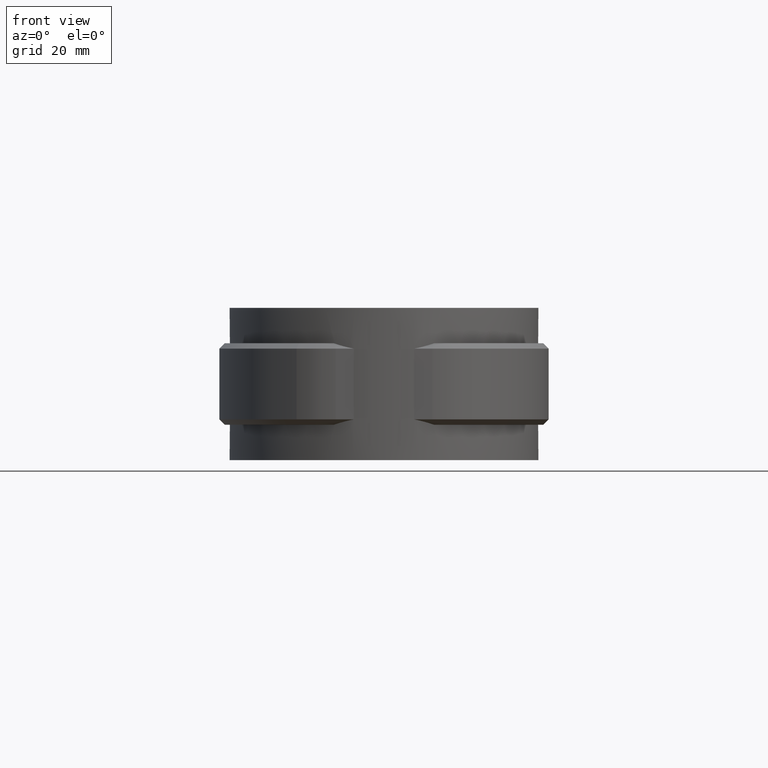
[diagram: clean part render]
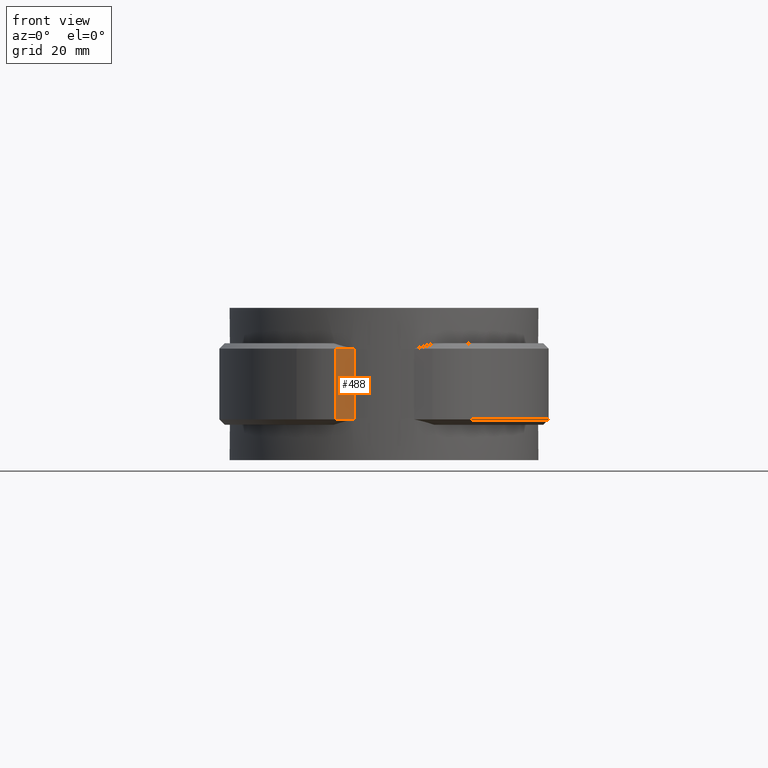
[diagram: same view with one face highlighted and labeled with its STEP entity id]
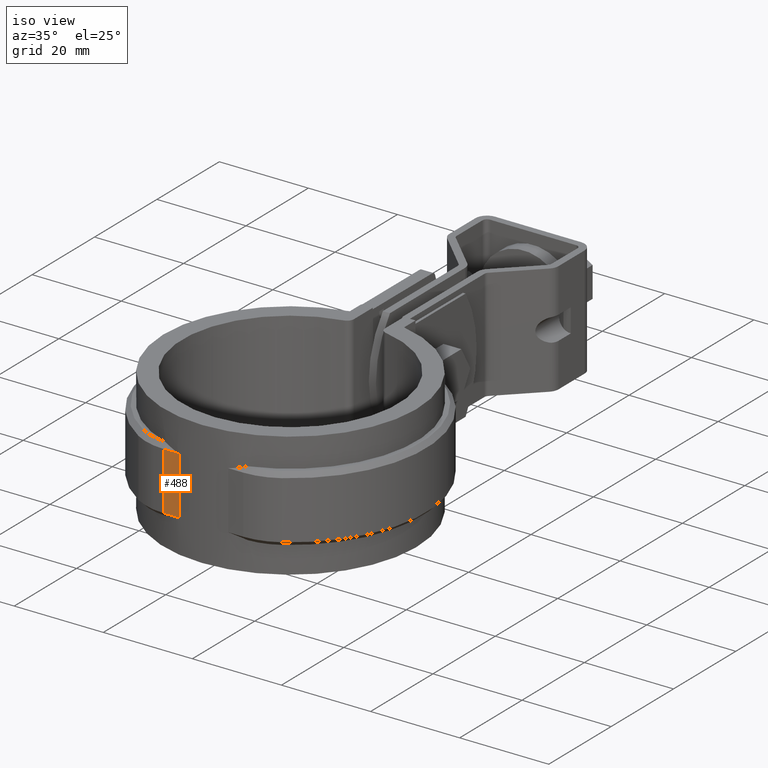
[diagram: same view with one face highlighted and labeled with its STEP entity id]
A machine part, front view. The second image highlights one B-rep face of the part: STEP entity #488.
A second angle (iso view) of the same face is appended — the face is thin or edge-on in the first view.
In plain terms, the highlighted planar face has unit normal (0, -1, 0).
Its self-contained STEP definition (entity closure, byte-faithful):
#488 = ADVANCED_FACE( '', ( #976 ), #977, .T. );
#976 = FACE_OUTER_BOUND( '', #2334, .T. );
#977 = PLANE( '', #2335 );
#2334 = EDGE_LOOP( '', ( #5298, #5299, #5300, #5301 ) );
#2335 = AXIS2_PLACEMENT_3D( '', #5302, #5303, #5304 );
#5298 = ORIENTED_EDGE( '', *, *, #7723, .F. );
#5299 = ORIENTED_EDGE( '', *, *, #7724, .T. );
#5300 = ORIENTED_EDGE( '', *, *, #7699, .T. );
#5301 = ORIENTED_EDGE( '', *, *, #7725, .T. );
#5302 = CARTESIAN_POINT( '', ( -8.88873022427837, -27.8500000000000, -20.0000000000000 ) );
#5303 = DIRECTION( '', ( 0.000000000000000, -1.00000000000000, 0.000000000000000 ) );
#5304 = DIRECTION( '', ( -1.00000000000000, 0.000000000000000, 0.000000000000000 ) );
#7699 = EDGE_CURVE( '', #8960, #8958, #8961, .T. );
#7723 = EDGE_CURVE( '', #8985, #8916, #8998, .T. );
#7724 = EDGE_CURVE( '', #8985, #8960, #8999, .T. );
#7725 = EDGE_CURVE( '', #8958, #8916, #9000, .T. );
#8916 = VERTEX_POINT( '', #13017 );
#8958 = VERTEX_POINT( '', #13089 );
#8960 = VERTEX_POINT( '', #13091 );
#8961 = LINE( '', #13092, #13093 );
#8985 = VERTEX_POINT( '', #13129 );
#8998 = LINE( '', #13148, #13149 );
#8999 = LINE( '', #13150, #13151 );
#9000 = LINE( '', #13152, #13153 );
#13017 = CARTESIAN_POINT( '', ( -8.88873022427839, -27.8500000000000, -6.00000000000000 ) );
#13089 = CARTESIAN_POINT( '', ( -5.53656256173450, -27.8500000000000, -6.00000000000000 ) );
#13091 = CARTESIAN_POINT( '', ( -5.53656256173450, -27.8500000000000, -19.0000000000000 ) );
#13092 = CARTESIAN_POINT( '', ( -5.53656256173450, -27.8500000000000, -20.0000000000000 ) );
#13093 = VECTOR( '', #15029, 1000.00000000000 );
#13129 = CARTESIAN_POINT( '', ( -8.88873022427839, -27.8500000000000, -19.0000000000000 ) );
#13148 = CARTESIAN_POINT( '', ( -8.88873022427839, -27.8500000000000, -20.0000000000000 ) );
#13149 = VECTOR( '', #15072, 1000.00000000000 );
#13150 = CARTESIAN_POINT( '', ( -8.88873022427837, -27.8500000000000, -19.0000000000000 ) );
#13151 = VECTOR( '', #15073, 1000.00000000000 );
#13152 = CARTESIAN_POINT( '', ( -8.88873022427839, -27.8500000000000, -6.00000000000000 ) );
#13153 = VECTOR( '', #15074, 1000.00000000000 );
#15029 = DIRECTION( '', ( 0.000000000000000, 0.000000000000000, 1.00000000000000 ) );
#15072 = DIRECTION( '', ( 0.000000000000000, 0.000000000000000, 1.00000000000000 ) );
#15073 = DIRECTION( '', ( 1.00000000000000, 0.000000000000000, 0.000000000000000 ) );
#15074 = DIRECTION( '', ( -1.00000000000000, 0.000000000000000, 0.000000000000000 ) );